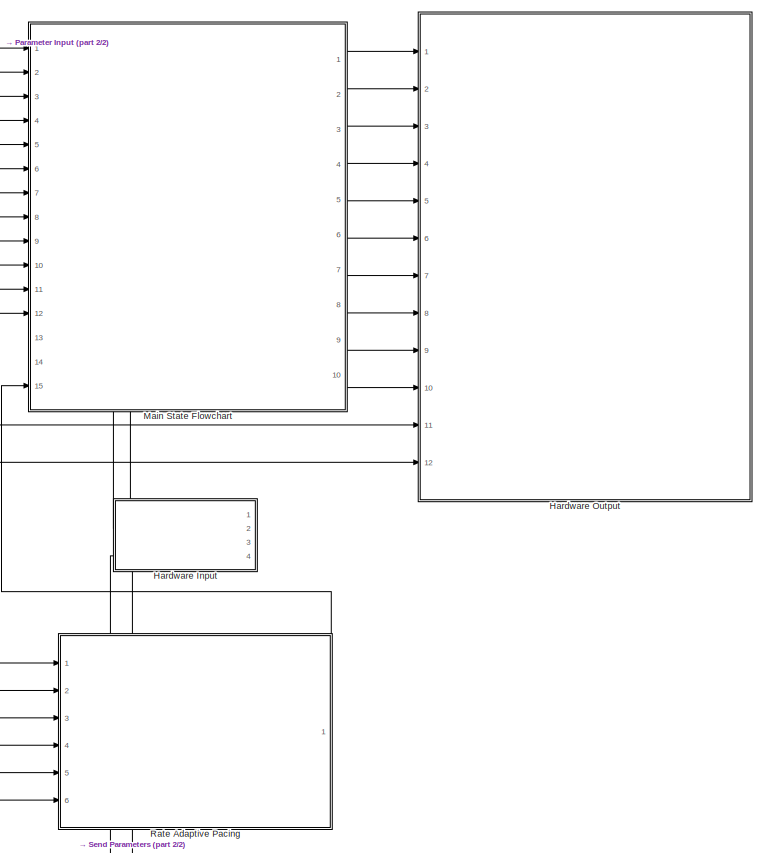
[diagram: root canvas - part 1/2, middle right region]
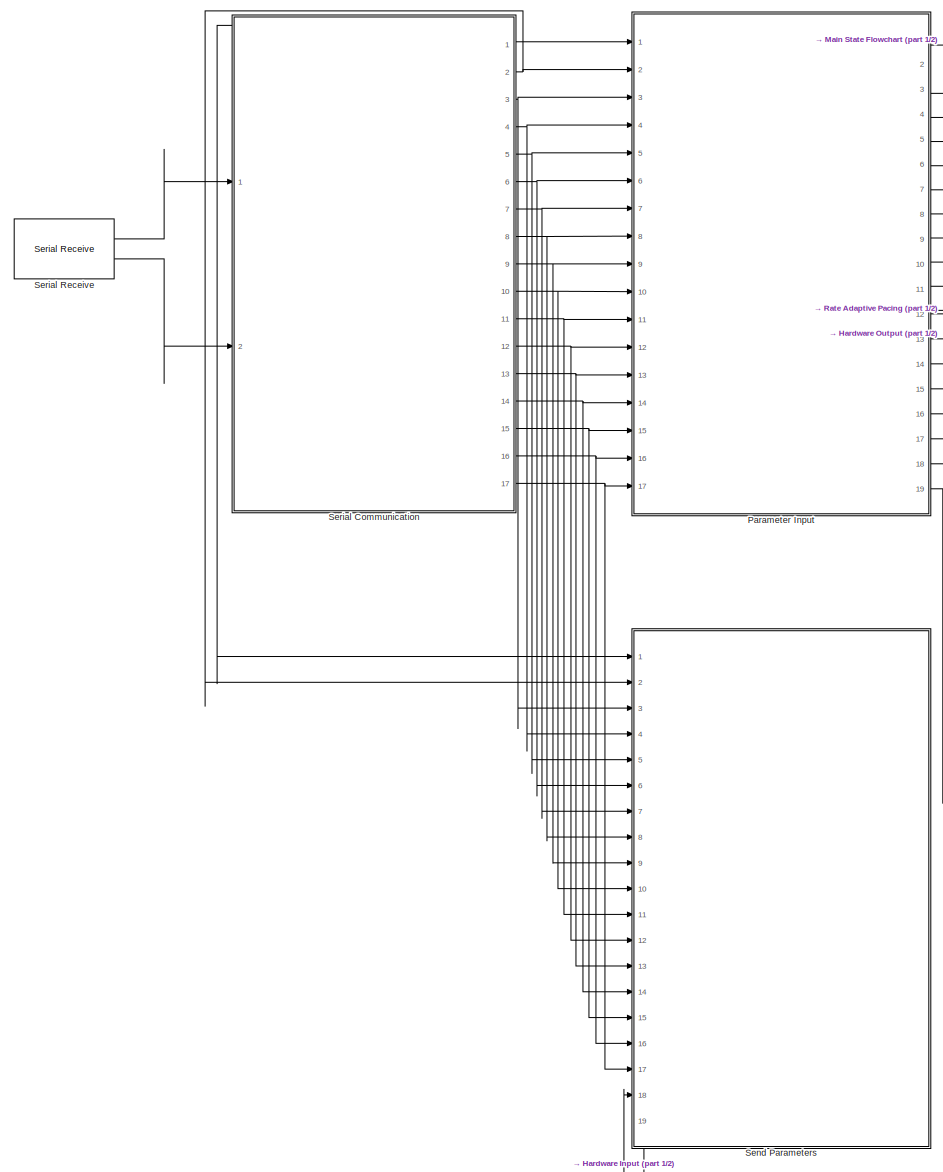
[diagram: root canvas - part 2/2, left side, full height]
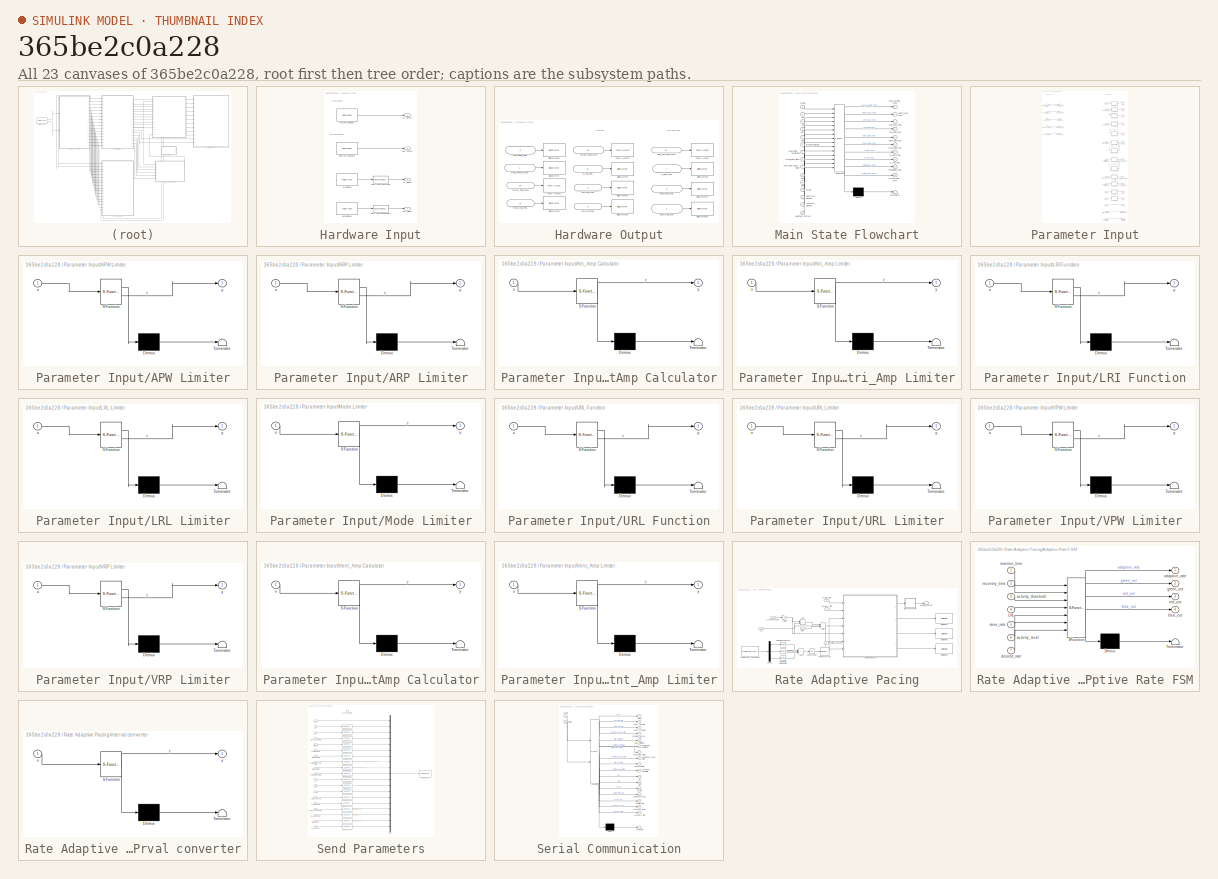
[diagram: thumbnail index - all 23 canvases of the model, root first then tree order]
MODEL slx_365be2c0a228
KIND model
CONFIG AbsTol = auto
CONFIG EnableMultiTasking = on
CONFIG FixedStep = 1e-3
CONFIG MaxStep = auto
CONFIG MinStep = auto
CONFIG RelTol = 1e-3
CONFIG SampleTimeConstraint = Unconstrained
CONFIG Solver = FixedStepAuto
CONFIG SolverName = FixedStepAuto
CONFIG StartTime = 0.0
CONFIG StopTime = 5
WORKSPACE source: mxarray member
WORKSPACE ATR_CMP_REF_PWM_PERCENTAGE = 50
WORKSPACE PACING_REF_PWM_DUTY_PERCENTAGE = 50
WORKSPACE VENT_CMP_REF_PWM_PERCENTAGE = 50
BLOCK [SubSystem] Hardware Input
  PortSchema = {"entries":[{"content":{"sides":[{"content":{"connectorIds":["Out1","Out2","Out3","Out4"]},"type":"ConnectorPlacement.EquallySpacedRectSide","uuid":"5cee9ea6-bf5d-4625-bfce-39977475e911"},{"content":{"connectorIds":[],"side":"RIGHT"},"type":"ConnectorPlacement.EquallySpacedRectSide","uuid":"d8f9e342-4161-4713-ba8e-977d0ac6df9e"},{"content":{"connectorIds":[],"side":"TOP"},"type":"ConnectorPlacemen...<+258ch>
  Ports = [0, 4]
  RequestExecContextInheritance = off
BLOCK [Reference] Hardware Input/ATR_CMP_DETECT  REF=frdmk64flib/Digital Read
  Ports = [0, 1]
  SourceBlock = frdmk64flib/Digital Read
  SourceProductBaseCode = EC_FRDM_K64F
  SourceType = freedomk64f.DigitalRead
BLOCK [Reference] Hardware Input/AtrSignalIn  REF=frdmk64flib/Analog Input
  Ports = [0, 1]
  SourceBlock = frdmk64flib/Analog Input
  SourceProductBaseCode = EC_FRDM_K64F
  SourceType = freedomk64f.AnalogInput
BLOCK [Outport] Hardware Input/Atr_Detect
BLOCK [Outport] Hardware Input/Atr_Signal
  OutDataTypeStr = single
  Port = 3
BLOCK [DataTypeConversion] Hardware Input/Data Type Conversion
  OutDataTypeStr = single
  RndMeth = Floor
  SaturateOnIntegerOverflow = off
BLOCK [DataTypeConversion] Hardware Input/Data Type Conversion1
  OutDataTypeStr = single
  RndMeth = Floor
  SaturateOnIntegerOverflow = off
BLOCK [Reference] Hardware Input/VENT_CMP_DETECT  REF=frdmk64flib/Digital Read
  Ports = [0, 1]
  SourceBlock = frdmk64flib/Digital Read
  SourceProductBaseCode = EC_FRDM_K64F
  SourceType = freedomk64f.DigitalRead
BLOCK [Reference] Hardware Input/VentSignalIn  REF=frdmk64flib/Analog Input
  Ports = [0, 1]
  SourceBlock = frdmk64flib/Analog Input
  SourceProductBaseCode = EC_FRDM_K64F
  SourceType = freedomk64f.AnalogInput
BLOCK [Outport] Hardware Input/Vent_Detect
  Port = 2
BLOCK [Outport] Hardware Input/Vent_Signal
  OutDataTypeStr = single
  Port = 4
BLOCK [SubSystem] Hardware Output
  Ports = [12]
  RequestExecContextInheritance = off
BLOCK [Inport] Hardware Output/ATR_CMP_REF_PWM
  IconDisplay = Port number and signal name
  Port = 12
BLOCK [Inport] Hardware Output/ATR_GND_CTRL
  IconDisplay = Port number and signal name
  Port = 4
BLOCK [Inport] Hardware Output/ATR_PACE_CTRL
  IconDisplay = Port number and signal name
  Port = 3
BLOCK [Reference] Hardware Output/Digital Write  REF=frdmk64flib/Digital Write
  Ports = [1]
  SourceBlock = frdmk64flib/Digital Write
  SourceProductBaseCode = EC_FRDM_K64F
  SourceType = freedomk64f.DigitalWrite
BLOCK [Reference] Hardware Output/Digital Write1  REF=frdmk64flib/Digital Write
  Ports = [1]
  SourceBlock = frdmk64flib/Digital Write
  SourceProductBaseCode = EC_FRDM_K64F
  SourceType = freedomk64f.DigitalWrite
BLOCK [Reference] Hardware Output/Digital Write2  REF=frdmk64flib/Digital Write
  Ports = [1]
  SourceBlock = frdmk64flib/Digital Write
  SourceProductBaseCode = EC_FRDM_K64F
  SourceType = freedomk64f.DigitalWrite
BLOCK [Reference] Hardware Output/Digital Write3  REF=frdmk64flib/Digital Write
  Ports = [1]
  SourceBlock = frdmk64flib/Digital Write
  SourceProductBaseCode = EC_FRDM_K64F
  SourceType = freedomk64f.DigitalWrite
BLOCK [Reference] Hardware Output/Digital Write4  REF=frdmk64flib/Digital Write
  Ports = [1]
  SourceBlock = frdmk64flib/Digital Write
  SourceProductBaseCode = EC_FRDM_K64F
  SourceType = freedomk64f.DigitalWrite
BLOCK [Reference] Hardware Output/Digital Write5  REF=frdmk64flib/Digital Write
  Ports = [1]
  SourceBlock = frdmk64flib/Digital Write
  SourceProductBaseCode = EC_FRDM_K64F
  SourceType = freedomk64f.DigitalWrite
BLOCK [Reference] Hardware Output/Digital Write6  REF=frdmk64flib/Digital Write
  Ports = [1]
  SourceBlock = frdmk64flib/Digital Write
  SourceProductBaseCode = EC_FRDM_K64F
  SourceType = freedomk64f.DigitalWrite
BLOCK [Reference] Hardware Output/Digital Write7  REF=frdmk64flib/Digital Write
  Ports = [1]
  SourceBlock = frdmk64flib/Digital Write
  SourceProductBaseCode = EC_FRDM_K64F
  SourceType = freedomk64f.DigitalWrite
BLOCK [Reference] Hardware Output/Digital Write8  REF=frdmk64flib/Digital Write
  Ports = [1]
  SourceBlock = frdmk64flib/Digital Write
  SourceProductBaseCode = EC_FRDM_K64F
  SourceType = freedomk64f.DigitalWrite
BLOCK [Inport] Hardware Output/FRONTEND_CTRL
  IconDisplay = Port number and signal name
  Port = 9
BLOCK [Inport] Hardware Output/PACE_CHARGE_CTRL
  IconDisplay = Port number and signal name
BLOCK [Inport] Hardware Output/PACE_GND_CTRL
  IconDisplay = Port number and signal name
  Port = 6
BLOCK [Inport] Hardware Output/PACING_REF_PWM
  IconDisplay = Port number and signal name
  Port = 10
BLOCK [Reference] Hardware Output/PWM Output  REF=frdmk64flib/PWM Output
  Ports = [1]
  SourceBlock = frdmk64flib/PWM Output
  SourceProductBaseCode = EC_FRDM_K64F
  SourceType = freedomk64f.PWMOutput
BLOCK [Reference] Hardware Output/PWM Output1  REF=frdmk64flib/PWM Output
  Ports = [1]
  SourceBlock = frdmk64flib/PWM Output
  SourceProductBaseCode = EC_FRDM_K64F
  SourceType = freedomk64f.PWMOutput
BLOCK [Reference] Hardware Output/PWM Output2  REF=frdmk64flib/PWM Output
  Ports = [1]
  SourceBlock = frdmk64flib/PWM Output
  SourceProductBaseCode = EC_FRDM_K64F
  SourceType = freedomk64f.PWMOutput
BLOCK [Inport] Hardware Output/VENT_CMP_REF_PWM
  IconDisplay = Port number and signal name
  Port = 11
BLOCK [Inport] Hardware Output/VENT_GND_CTRL
  IconDisplay = Port number and signal name
  Port = 5
BLOCK [Inport] Hardware Output/VENT_PACE_CTRL
  IconDisplay = Port number and signal name
  Port = 2
BLOCK [Inport] Hardware Output/Z_ATR_CTRL
  IconDisplay = Port number and signal name
  Port = 8
BLOCK [Inport] Hardware Output/Z_VENT_CTRL
  IconDisplay = Port number and signal name
  Port = 7
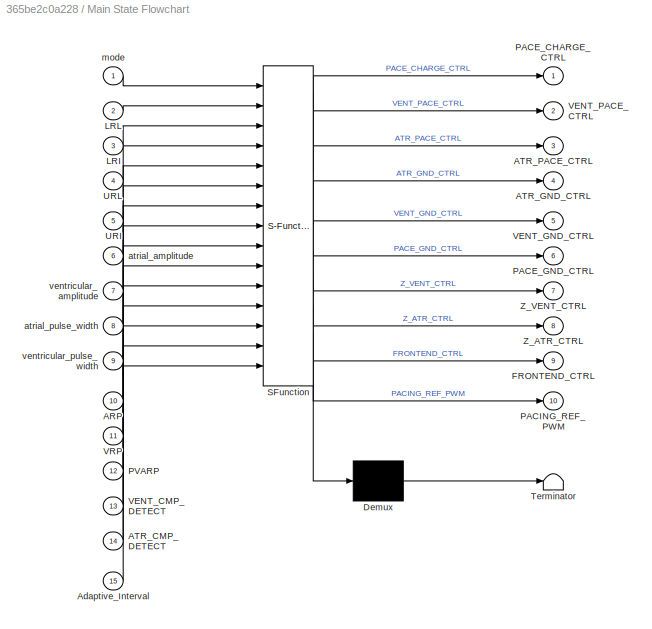
BLOCK [SubSystem] Main State Flowchart
  ErrorFcn = Stateflow.Translate.translate
  PermitHierarchicalResolution = ExplicitOnly
  PortSchema = {"entries":[{"content":{"sides":[{"content":{"connectorIds":["In1","In3","In4","In5","In6","In7","In8","In9","In10","In11","In12","In2","In13","In14","In15"]},"type":"ConnectorPlacement.EquallySpacedRectSide","uuid":"dd10fdf1-6157-45dd-a563-5abbe55aaf98"},{"content":{"connectorIds":["Out1","Out2","Out3","Out4","Out5","Out6","Out7","Out8","Out9","Out10"],"side":"RIGHT"},"type":"ConnectorPlacement.E...<+396ch>
  Ports = [15, 10]
  RequestExecContextInheritance = off
  SFBlockType = Chart
  TreatAsAtomicUnit = on
BLOCK [Demux] Main State Flowchart/ Demux 
  Outputs = 1
  Ports = [1, 1]
BLOCK [S-Function] Main State Flowchart/ SFunction 
  EnableBusSupport = on
  FunctionName = sf_sfun
  PortCounts = [15 11]
  Ports = [15, 11]
  SFcnIsStateOwnerBlock = off
  SFunctionDeploymentMode = off
  Tag = Stateflow S-Function 3
BLOCK [Terminator] Main State Flowchart/ Terminator 
BLOCK [Inport] Main State Flowchart/ARP
  Port = 10
BLOCK [Inport] Main State Flowchart/ATR_CMP_DETECT
  Port = 14
BLOCK [Outport] Main State Flowchart/ATR_GND_CTRL
  Port = 4
BLOCK [Outport] Main State Flowchart/ATR_PACE_CTRL
  Port = 3
BLOCK [Inport] Main State Flowchart/Adaptive_Interval
  Port = 15
BLOCK [Outport] Main State Flowchart/FRONTEND_CTRL
  Port = 9
BLOCK [Inport] Main State Flowchart/LRI
  Port = 3
BLOCK [Inport] Main State Flowchart/LRL
  Port = 2
BLOCK [Outport] Main State Flowchart/PACE_CHARGE_CTRL
BLOCK [Outport] Main State Flowchart/PACE_GND_CTRL
  Port = 6
BLOCK [Outport] Main State Flowchart/PACING_REF_PWM
  Port = 10
BLOCK [Inport] Main State Flowchart/PVARP
  Port = 12
BLOCK [Inport] Main State Flowchart/URI
  Port = 5
BLOCK [Inport] Main State Flowchart/URL
  Port = 4
BLOCK [Inport] Main State Flowchart/VENT_CMP_DETECT
  Port = 13
BLOCK [Outport] Main State Flowchart/VENT_GND_CTRL
  Port = 5
BLOCK [Outport] Main State Flowchart/VENT_PACE_CTRL
  Port = 2
BLOCK [Inport] Main State Flowchart/VRP
  Port = 11
BLOCK [Outport] Main State Flowchart/Z_ATR_CTRL
  Port = 8
BLOCK [Outport] Main State Flowchart/Z_VENT_CTRL
  Port = 7
BLOCK [Inport] Main State Flowchart/atrial_amplitude
  Port = 6
BLOCK [Inport] Main State Flowchart/atrial_pulse_width
  Port = 8
BLOCK [Inport] Main State Flowchart/mode
BLOCK [Inport] Main State Flowchart/ventricular_amplitude
  Port = 7
BLOCK [Inport] Main State Flowchart/ventricular_pulse_width
  Port = 9
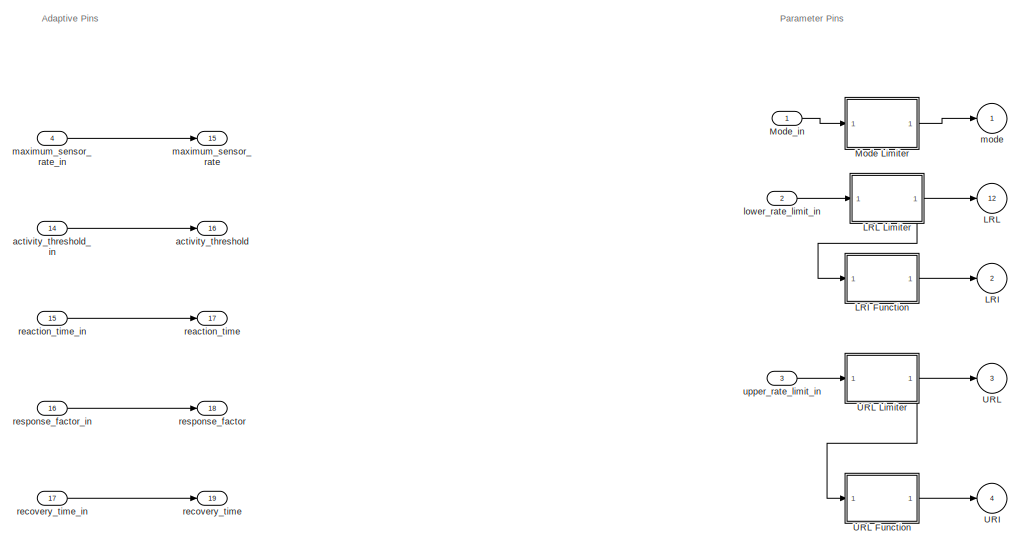
[diagram: Parameter Input - part 1/2, full width, top band]
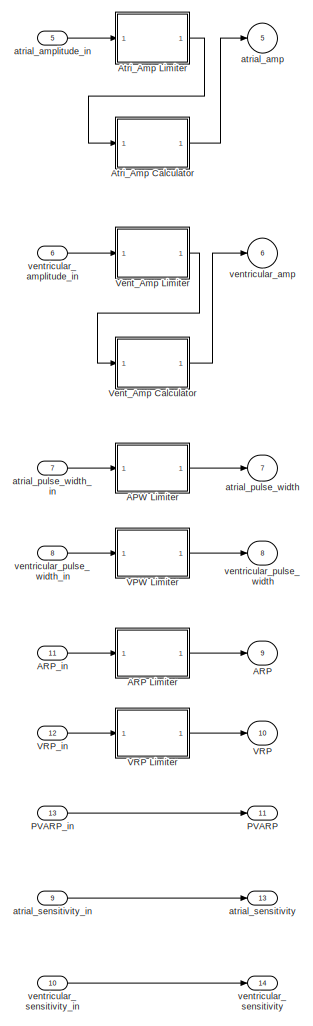
[diagram: Parameter Input - part 2/2, bottom right region]
BLOCK [SubSystem] Parameter Input
  Ports = [17, 19]
  RequestExecContextInheritance = off
BLOCK [SubSystem] Parameter Input/APW Limiter
  ErrorFcn = Stateflow.Translate.translate
  PermitHierarchicalResolution = ExplicitOnly
  Ports = [1, 1]
  RequestExecContextInheritance = off
  SFBlockType = MATLAB Function
  TreatAsAtomicUnit = on
BLOCK [Demux] Parameter Input/APW Limiter/ Demux 
  Outputs = 1
  Ports = [1, 1]
BLOCK [S-Function] Parameter Input/APW Limiter/ SFunction 
  EnableBusSupport = on
  FunctionName = sf_sfun
  PortCounts = [1 2]
  Ports = [1, 2]
  SFcnIsStateOwnerBlock = off
  SFunctionDeploymentMode = off
  Tag = Stateflow S-Function 1
BLOCK [Terminator] Parameter Input/APW Limiter/ Terminator 
BLOCK [Inport] Parameter Input/APW Limiter/u
BLOCK [Outport] Parameter Input/APW Limiter/y
BLOCK [Outport] Parameter Input/ARP
  OutDataTypeStr = single
  Port = 9
BLOCK [SubSystem] Parameter Input/ARP Limiter
  ErrorFcn = Stateflow.Translate.translate
  PermitHierarchicalResolution = ExplicitOnly
  Ports = [1, 1]
  RequestExecContextInheritance = off
  SFBlockType = MATLAB Function
  TreatAsAtomicUnit = on
BLOCK [Demux] Parameter Input/ARP Limiter/ Demux 
  Outputs = 1
  Ports = [1, 1]
BLOCK [S-Function] Parameter Input/ARP Limiter/ SFunction 
  EnableBusSupport = on
  FunctionName = sf_sfun
  PortCounts = [1 2]
  Ports = [1, 2]
  SFcnIsStateOwnerBlock = off
  SFunctionDeploymentMode = off
  Tag = Stateflow S-Function 7
BLOCK [Terminator] Parameter Input/ARP Limiter/ Terminator 
BLOCK [Inport] Parameter Input/ARP Limiter/u
BLOCK [Outport] Parameter Input/ARP Limiter/y
BLOCK [Inport] Parameter Input/ARP_in
  OutDataTypeStr = single
  Port = 11
  Unit = ms
BLOCK [SubSystem] Parameter Input/Atri_Amp Calculator
  ErrorFcn = Stateflow.Translate.translate
  PermitHierarchicalResolution = ExplicitOnly
  Ports = [1, 1]
  RequestExecContextInheritance = off
  SFBlockType = MATLAB Function
  TreatAsAtomicUnit = on
BLOCK [Demux] Parameter Input/Atri_Amp Calculator/ Demux 
  Outputs = 1
  Ports = [1, 1]
BLOCK [S-Function] Parameter Input/Atri_Amp Calculator/ SFunction 
  EnableBusSupport = on
  FunctionName = sf_sfun
  PortCounts = [1 2]
  Ports = [1, 2]
  SFcnIsStateOwnerBlock = off
  SFunctionDeploymentMode = off
  Tag = Stateflow S-Function 15
BLOCK [Terminator] Parameter Input/Atri_Amp Calculator/ Terminator 
BLOCK [Inport] Parameter Input/Atri_Amp Calculator/u
BLOCK [Outport] Parameter Input/Atri_Amp Calculator/y
BLOCK [SubSystem] Parameter Input/Atri_Amp Limiter
  ErrorFcn = Stateflow.Translate.translate
  PermitHierarchicalResolution = ExplicitOnly
  Ports = [1, 1]
  RequestExecContextInheritance = off
  SFBlockType = MATLAB Function
  TreatAsAtomicUnit = on
BLOCK [Demux] Parameter Input/Atri_Amp Limiter/ Demux 
  Outputs = 1
  Ports = [1, 1]
BLOCK [S-Function] Parameter Input/Atri_Amp Limiter/ SFunction 
  EnableBusSupport = on
  FunctionName = sf_sfun
  PortCounts = [1 2]
  Ports = [1, 2]
  SFcnIsStateOwnerBlock = off
  SFunctionDeploymentMode = off
  Tag = Stateflow S-Function 5
BLOCK [Terminator] Parameter Input/Atri_Amp Limiter/ Terminator 
BLOCK [Inport] Parameter Input/Atri_Amp Limiter/u
BLOCK [Outport] Parameter Input/Atri_Amp Limiter/y
BLOCK [Outport] Parameter Input/LRI
  OutDataTypeStr = single
  Port = 2
BLOCK [SubSystem] Parameter Input/LRI Function
  ErrorFcn = Stateflow.Translate.translate
  PermitHierarchicalResolution = ExplicitOnly
  Ports = [1, 1]
  RequestExecContextInheritance = off
  SFBlockType = MATLAB Function
  TreatAsAtomicUnit = on
BLOCK [Demux] Parameter Input/LRI Function/ Demux 
  Outputs = 1
  Ports = [1, 1]
BLOCK [S-Function] Parameter Input/LRI Function/ SFunction 
  EnableBusSupport = on
  FunctionName = sf_sfun
  PortCounts = [1 2]
  Ports = [1, 2]
  SFcnIsStateOwnerBlock = off
  SFunctionDeploymentMode = off
  Tag = Stateflow S-Function 10
BLOCK [Terminator] Parameter Input/LRI Function/ Terminator 
BLOCK [Inport] Parameter Input/LRI Function/u
BLOCK [Outport] Parameter Input/LRI Function/y
BLOCK [Outport] Parameter Input/LRL
  OutDataTypeStr = single
  Port = 12
BLOCK [SubSystem] Parameter Input/LRL Limiter
  ErrorFcn = Stateflow.Translate.translate
  PermitHierarchicalResolution = ExplicitOnly
  Ports = [1, 1]
  RequestExecContextInheritance = off
  SFBlockType = MATLAB Function
  TreatAsAtomicUnit = on
BLOCK [Demux] Parameter Input/LRL Limiter/ Demux 
  Outputs = 1
  Ports = [1, 1]
BLOCK [S-Function] Parameter Input/LRL Limiter/ SFunction 
  EnableBusSupport = on
  FunctionName = sf_sfun
  PortCounts = [1 2]
  Ports = [1, 2]
  SFcnIsStateOwnerBlock = off
  SFunctionDeploymentMode = off
  Tag = Stateflow S-Function 6
BLOCK [Terminator] Parameter Input/LRL Limiter/ Terminator 
BLOCK [Inport] Parameter Input/LRL Limiter/u
BLOCK [Outport] Parameter Input/LRL Limiter/y
BLOCK [SubSystem] Parameter Input/Mode Limiter
  ErrorFcn = Stateflow.Translate.translate
  PermitHierarchicalResolution = ExplicitOnly
  Ports = [1, 1]
  RequestExecContextInheritance = off
  SFBlockType = MATLAB Function
  TreatAsAtomicUnit = on
BLOCK [Demux] Parameter Input/Mode Limiter/ Demux 
  Outputs = 1
  Ports = [1, 1]
BLOCK [S-Function] Parameter Input/Mode Limiter/ SFunction 
  EnableBusSupport = on
  FunctionName = sf_sfun
  PortCounts = [1 2]
  Ports = [1, 2]
  SFcnIsStateOwnerBlock = off
  SFunctionDeploymentMode = off
  Tag = Stateflow S-Function 2
BLOCK [Terminator] Parameter Input/Mode Limiter/ Terminator 
BLOCK [Inport] Parameter Input/Mode Limiter/u
BLOCK [Outport] Parameter Input/Mode Limiter/y
BLOCK [Inport] Parameter Input/Mode_in
  OutDataTypeStr = uint8
BLOCK [Outport] Parameter Input/PVARP
  OutDataTypeStr = uint16
  Port = 11
BLOCK [Inport] Parameter Input/PVARP_in
  OutDataTypeStr = uint16
  Port = 13
  Unit = ms
BLOCK [Outport] Parameter Input/URI
  OutDataTypeStr = single
  Port = 4
BLOCK [Outport] Parameter Input/URL
  OutDataTypeStr = single
  Port = 3
BLOCK [SubSystem] Parameter Input/URL Function
  ErrorFcn = Stateflow.Translate.translate
  PermitHierarchicalResolution = ExplicitOnly
  Ports = [1, 1]
  RequestExecContextInheritance = off
  SFBlockType = MATLAB Function
  TreatAsAtomicUnit = on
BLOCK [Demux] Parameter Input/URL Function/ Demux 
  Outputs = 1
  Ports = [1, 1]
BLOCK [S-Function] Parameter Input/URL Function/ SFunction 
  EnableBusSupport = on
  FunctionName = sf_sfun
  PortCounts = [1 2]
  Ports = [1, 2]
  SFcnIsStateOwnerBlock = off
  SFunctionDeploymentMode = off
  Tag = Stateflow S-Function 11
BLOCK [Terminator] Parameter Input/URL Function/ Terminator 
BLOCK [Inport] Parameter Input/URL Function/u
BLOCK [Outport] Parameter Input/URL Function/y
BLOCK [SubSystem] Parameter Input/URL Limiter
  ErrorFcn = Stateflow.Translate.translate
  PermitHierarchicalResolution = ExplicitOnly
  Ports = [1, 1]
  RequestExecContextInheritance = off
  SFBlockType = MATLAB Function
  TreatAsAtomicUnit = on
BLOCK [Demux] Parameter Input/URL Limiter/ Demux 
  Outputs = 1
  Ports = [1, 1]
BLOCK [S-Function] Parameter Input/URL Limiter/ SFunction 
  EnableBusSupport = on
  FunctionName = sf_sfun
  PortCounts = [1 2]
  Ports = [1, 2]
  SFcnIsStateOwnerBlock = off
  SFunctionDeploymentMode = off
  Tag = Stateflow S-Function 9
BLOCK [Terminator] Parameter Input/URL Limiter/ Terminator 
BLOCK [Inport] Parameter Input/URL Limiter/u
BLOCK [Outport] Parameter Input/URL Limiter/y
BLOCK [SubSystem] Parameter Input/VPW Limiter
  ErrorFcn = Stateflow.Translate.translate
  PermitHierarchicalResolution = ExplicitOnly
  Ports = [1, 1]
  RequestExecContextInheritance = off
  SFBlockType = MATLAB Function
  TreatAsAtomicUnit = on
BLOCK [Demux] Parameter Input/VPW Limiter/ Demux 
  Outputs = 1
  Ports = [1, 1]
BLOCK [S-Function] Parameter Input/VPW Limiter/ SFunction 
  EnableBusSupport = on
  FunctionName = sf_sfun
  PortCounts = [1 2]
  Ports = [1, 2]
  SFcnIsStateOwnerBlock = off
  SFunctionDeploymentMode = off
  Tag = Stateflow S-Function 4
BLOCK [Terminator] Parameter Input/VPW Limiter/ Terminator 
BLOCK [Inport] Parameter Input/VPW Limiter/u
BLOCK [Outport] Parameter Input/VPW Limiter/y
BLOCK [Outport] Parameter Input/VRP
  OutDataTypeStr = single
  Port = 10
BLOCK [SubSystem] Parameter Input/VRP Limiter
  ErrorFcn = Stateflow.Translate.translate
  PermitHierarchicalResolution = ExplicitOnly
  Ports = [1, 1]
  RequestExecContextInheritance = off
  SFBlockType = MATLAB Function
  TreatAsAtomicUnit = on
BLOCK [Demux] Parameter Input/VRP Limiter/ Demux 
  Outputs = 1
  Ports = [1, 1]
BLOCK [S-Function] Parameter Input/VRP Limiter/ SFunction 
  EnableBusSupport = on
  FunctionName = sf_sfun
  PortCounts = [1 2]
  Ports = [1, 2]
  SFcnIsStateOwnerBlock = off
  SFunctionDeploymentMode = off
  Tag = Stateflow S-Function 8
BLOCK [Terminator] Parameter Input/VRP Limiter/ Terminator 
BLOCK [Inport] Parameter Input/VRP Limiter/u
BLOCK [Outport] Parameter Input/VRP Limiter/y
BLOCK [Inport] Parameter Input/VRP_in
  OutDataTypeStr = single
  Port = 12
  Unit = ms
BLOCK [SubSystem] Parameter Input/Vent_Amp Calculator
  ErrorFcn = Stateflow.Translate.translate
  PermitHierarchicalResolution = ExplicitOnly
  Ports = [1, 1]
  RequestExecContextInheritance = off
  SFBlockType = MATLAB Function
  TreatAsAtomicUnit = on
BLOCK [Demux] Parameter Input/Vent_Amp Calculator/ Demux 
  Outputs = 1
  Ports = [1, 1]
BLOCK [S-Function] Parameter Input/Vent_Amp Calculator/ SFunction 
  EnableBusSupport = on
  FunctionName = sf_sfun
  PortCounts = [1 2]
  Ports = [1, 2]
  SFcnIsStateOwnerBlock = off
  SFunctionDeploymentMode = off
  Tag = Stateflow S-Function 16
BLOCK [Terminator] Parameter Input/Vent_Amp Calculator/ Terminator 
BLOCK [Inport] Parameter Input/Vent_Amp Calculator/u
BLOCK [Outport] Parameter Input/Vent_Amp Calculator/y
BLOCK [SubSystem] Parameter Input/Vent_Amp Limiter
  ErrorFcn = Stateflow.Translate.translate
  PermitHierarchicalResolution = ExplicitOnly
  Ports = [1, 1]
  RequestExecContextInheritance = off
  SFBlockType = MATLAB Function
  TreatAsAtomicUnit = on
BLOCK [Demux] Parameter Input/Vent_Amp Limiter/ Demux 
  Outputs = 1
  Ports = [1, 1]
BLOCK [S-Function] Parameter Input/Vent_Amp Limiter/ SFunction 
  EnableBusSupport = on
  FunctionName = sf_sfun
  PortCounts = [1 2]
  Ports = [1, 2]
  SFcnIsStateOwnerBlock = off
  SFunctionDeploymentMode = off
  Tag = Stateflow S-Function 14
BLOCK [Terminator] Parameter Input/Vent_Amp Limiter/ Terminator 
BLOCK [Inport] Parameter Input/Vent_Amp Limiter/u
BLOCK [Outport] Parameter Input/Vent_Amp Limiter/y
BLOCK [Outport] Parameter Input/activity_threshold
  OutDataTypeStr = single
  Port = 16
BLOCK [Inport] Parameter Input/activity_threshold_in
  OutDataTypeStr = single
  Port = 14
BLOCK [Outport] Parameter Input/atrial_amp
  OutDataTypeStr = single
  Port = 5
BLOCK [Inport] Parameter Input/atrial_amplitude_in
  OutDataTypeStr = single
  Port = 5
  Unit = V
BLOCK [Outport] Parameter Input/atrial_pulse_width
  OutDataTypeStr = single
  Port = 7
BLOCK [Inport] Parameter Input/atrial_pulse_width_in
  LockScale = on
  OutDataTypeStr = single
  Port = 7
  Unit = ms
BLOCK [Outport] Parameter Input/atrial_sensitivity
  OutDataTypeStr = single
  Port = 13
BLOCK [Inport] Parameter Input/atrial_sensitivity_in
  OutDataTypeStr = single
  Port = 9
  Unit = mV
BLOCK [Inport] Parameter Input/lower_rate_limit_in
  OutDataTypeStr = single
  Port = 2
BLOCK [Outport] Parameter Input/maximum_sensor_rate
  OutDataTypeStr = single
  Port = 15
BLOCK [Inport] Parameter Input/maximum_sensor_rate_in
  OutDataTypeStr = single
  Port = 4
BLOCK [Outport] Parameter Input/mode
  OutDataTypeStr = uint8
BLOCK [Outport] Parameter Input/reaction_time
  OutDataTypeStr = single
  Port = 17
BLOCK [Inport] Parameter Input/reaction_time_in
  OutDataTypeStr = single
  Port = 15
  Unit = s
BLOCK [Outport] Parameter Input/recovery_time
  OutDataTypeStr = single
  Port = 19
BLOCK [Inport] Parameter Input/recovery_time_in
  OutDataTypeStr = single
  Port = 17
  Unit = s
BLOCK [Outport] Parameter Input/response_factor
  OutDataTypeStr = single
  Port = 18
BLOCK [Inport] Parameter Input/response_factor_in
  OutDataTypeStr = single
  Port = 16
BLOCK [Inport] Parameter Input/upper_rate_limit_in
  OutDataTypeStr = single
  Port = 3
BLOCK [Outport] Parameter Input/ventricular_amp
  OutDataTypeStr = single
  Port = 6
BLOCK [Inport] Parameter Input/ventricular_amplitude_in
  OutDataTypeStr = single
  Port = 6
  Unit = V
BLOCK [Outport] Parameter Input/ventricular_pulse_width
  OutDataTypeStr = single
  Port = 8
BLOCK [Inport] Parameter Input/ventricular_pulse_width_in
  OutDataTypeStr = single
  Port = 8
  Unit = ms
BLOCK [Outport] Parameter Input/ventricular_sensitivity
  OutDataTypeStr = single
  Port = 14
BLOCK [Inport] Parameter Input/ventricular_sensitivity_in
  OutDataTypeStr = single
  Port = 10
  Unit = mV
BLOCK [SubSystem] Rate Adaptive Pacing
  Ports = [6, 1]
  RequestExecContextInheritance = off
BLOCK [SubSystem] Rate Adaptive Pacing/Adaptive Rate FSM
  ErrorFcn = Stateflow.Translate.translate
  PermitHierarchicalResolution = ExplicitOnly
  PortSchema = {"entries":[{"content":{"sides":[{"content":{"connectorIds":["In1","In2","In5","In7","In4","In3","In6"]},"type":"ConnectorPlacement.EquallySpacedRectSide","uuid":"ac5b5a9a-baa0-451d-a6e3-39214b5ee711"},{"content":{"connectorIds":["Out1","Out2","Out3","Out4"],"side":"RIGHT"},"type":"ConnectorPlacement.EquallySpacedRectSide","uuid":"f0426f16-b598-4be9-afee-34b2a98f2478"},{"content":{"connectorIds":[...<+299ch>
  Ports = [7, 4]
  RequestExecContextInheritance = off
  SFBlockType = Chart
  TreatAsAtomicUnit = on
BLOCK [Demux] Rate Adaptive Pacing/Adaptive Rate FSM/ Demux 
  Outputs = 1
  Ports = [1, 1]
BLOCK [S-Function] Rate Adaptive Pacing/Adaptive Rate FSM/ SFunction 
  EnableBusSupport = on
  FunctionName = sf_sfun
  PortCounts = [7 5]
  Ports = [7, 5]
  SFcnIsStateOwnerBlock = off
  SFunctionDeploymentMode = off
  Tag = Stateflow S-Function 13
BLOCK [Terminator] Rate Adaptive Pacing/Adaptive Rate FSM/ Terminator 
BLOCK [Inport] Rate Adaptive Pacing/Adaptive Rate FSM/LRL
  Port = 4
BLOCK [Inport] Rate Adaptive Pacing/Adaptive Rate FSM/activity_level
  Port = 6
BLOCK [Inport] Rate Adaptive Pacing/Adaptive Rate FSM/activity_threshold
  Port = 3
BLOCK [Outport] Rate Adaptive Pacing/Adaptive Rate FSM/adaptive_rate
BLOCK [Outport] Rate Adaptive Pacing/Adaptive Rate FSM/blue_out
  Port = 4
BLOCK [Inport] Rate Adaptive Pacing/Adaptive Rate FSM/desired_rate
  Port = 7
BLOCK [Outport] Rate Adaptive Pacing/Adaptive Rate FSM/green_out
  Port = 2
BLOCK [Inport] Rate Adaptive Pacing/Adaptive Rate FSM/raise_rate
  Port = 5
BLOCK [Inport] Rate Adaptive Pacing/Adaptive Rate FSM/reaction_time
BLOCK [Inport] Rate Adaptive Pacing/Adaptive Rate FSM/recovery_time
  Port = 2
BLOCK [Outport] Rate Adaptive Pacing/Adaptive Rate FSM/red_out
  Port = 3
BLOCK [Sum] Rate Adaptive Pacing/Add
  IconShape = rectangular
  Inputs = +++
  Ports = [3, 1]
BLOCK [Sum] Rate Adaptive Pacing/Add1
  IconShape = rectangular
  OutDataTypeStr = single
  Ports = [2, 1]
  RndMeth = Nearest
BLOCK [Demux] Rate Adaptive Pacing/Demux
  Outputs = 3
  Ports = [1, 3]
BLOCK [Reference] Rate Adaptive Pacing/Digital Write1  REF=frdmk64flib/Digital Write
  Ports = [1]
  SourceBlock = frdmk64flib/Digital Write
  SourceProductBaseCode = EC_FRDM_K64F
  SourceType = freedomk64f.DigitalWrite
BLOCK [Reference] Rate Adaptive Pacing/Digital Write2  REF=frdmk64flib/Digital Write
  Ports = [1]
  SourceBlock = frdmk64flib/Digital Write
  SourceProductBaseCode = EC_FRDM_K64F
  SourceType = freedomk64f.DigitalWrite
BLOCK [Reference] Rate Adaptive Pacing/Digital Write3  REF=frdmk64flib/Digital Write
  Ports = [1]
  SourceBlock = frdmk64flib/Digital Write
  SourceProductBaseCode = EC_FRDM_K64F
  SourceType = freedomk64f.DigitalWrite
BLOCK [Reference] Rate Adaptive Pacing/FXOS8700 6-Axes Sensor  REF=frdmk64flib/FXOS8700 6-Axes Sensor
  Ports = [0, 1]
  SourceBlock = frdmk64flib/FXOS8700 6-Axes Sensor
  SourceProductBaseCode = EC_FRDM_K64F
  SourceType = freedomk64f.fxos8700
BLOCK [Inport] Rate Adaptive Pacing/LRL
  NameLocation = top
  OutDataTypeStr = single
BLOCK [Inport] Rate Adaptive Pacing/MSR
  OutDataTypeStr = single
  Port = 2
BLOCK [Math] Rate Adaptive Pacing/Magnitude Squared
  Operator = magnitude^2
  Ports = [1, 1]
BLOCK [Math] Rate Adaptive Pacing/Magnitude Squared1
  Operator = magnitude^2
  Ports = [1, 1]
BLOCK [Math] Rate Adaptive Pacing/Magnitude Squared2
  Operator = magnitude^2
  Ports = [1, 1]
BLOCK [MinMax] Rate Adaptive Pacing/Min
  Inputs = 2
  OutDataTypeStr = single
  Ports = [2, 1]
BLOCK [Reference] Rate Adaptive Pacing/Moving Average  REF=dspstat3/Moving
Average
  Ports = [1, 1]
  SourceBlock = dspstat3/Moving\nAverage
  SourceProductBaseCode = DS
  SourceType = dsp.simulink.MovingAverage
BLOCK [Gain] Rate Adaptive Pacing/Multiply
  Gain = 4
  OutDataTypeStr = single
  ParamDataTypeStr = uint8
BLOCK [Sqrt] Rate Adaptive Pacing/Square Root
BLOCK [Inport] Rate Adaptive Pacing/activity_threshold
  OutDataTypeStr = single
  Port = 3
BLOCK [Outport] Rate Adaptive Pacing/adaptive_interval
  OutDataTypeStr = single
BLOCK [SubSystem] Rate Adaptive Pacing/interval converter
  ErrorFcn = Stateflow.Translate.translate
  PermitHierarchicalResolution = ExplicitOnly
  Ports = [1, 1]
  RequestExecContextInheritance = off
  SFBlockType = MATLAB Function
  TreatAsAtomicUnit = on
BLOCK [Demux] Rate Adaptive Pacing/interval converter/ Demux 
  Outputs = 1
  Ports = [1, 1]
BLOCK [S-Function] Rate Adaptive Pacing/interval converter/ SFunction 
  EnableBusSupport = on
  FunctionName = sf_sfun
  PortCounts = [1 2]
  Ports = [1, 2]
  SFcnIsStateOwnerBlock = off
  SFunctionDeploymentMode = off
  Tag = Stateflow S-Function 17
BLOCK [Terminator] Rate Adaptive Pacing/interval converter/ Terminator 
BLOCK [Inport] Rate Adaptive Pacing/interval converter/u
BLOCK [Outport] Rate Adaptive Pacing/interval converter/y
BLOCK [Inport] Rate Adaptive Pacing/reaction_time
  OutDataTypeStr = single
  Port = 4
BLOCK [Inport] Rate Adaptive Pacing/recovery_time
  OutDataTypeStr = single
  Port = 6
BLOCK [Inport] Rate Adaptive Pacing/response_factor
  OutDataTypeStr = single
  Port = 5
BLOCK [SubSystem] Send Parameters
  Ports = [19, 0, 0, 1]
  RequestExecContextInheritance = off
  TreatAsAtomicUnit = on
BLOCK [Inport] Send Parameters/ARP
  OutDataTypeStr = single
  Port = 11
BLOCK [Inport] Send Parameters/ActivityThreshold
  OutDataTypeStr = single
  Port = 14
BLOCK [Inport] Send Parameters/AtrialAmp
  OutDataTypeStr = single
  Port = 5
BLOCK [Inport] Send Parameters/AtrialPulseWidth
  OutDataTypeStr = single
  Port = 7
BLOCK [Inport] Send Parameters/AtrialSensitivity
  OutDataTypeStr = single
  Port = 9
BLOCK [Inport] Send Parameters/Atrial_Signal
  OutDataTypeStr = single
  Port = 18
BLOCK [Reference] Send Parameters/Byte Pack  REF=etargetslib/Byte Pack
  Ports = [1, 1]
  SourceBlock = etargetslib/Byte Pack
  SourceProductBaseCode = ME
  SourceType = Byte pack
BLOCK [Reference] Send Parameters/Byte Pack1  REF=etargetslib/Byte Pack
  Ports = [1, 1]
  SourceBlock = etargetslib/Byte Pack
  SourceProductBaseCode = ME
  SourceType = Byte pack
BLOCK [Reference] Send Parameters/Byte Pack10  REF=etargetslib/Byte Pack
  Ports = [1, 1]
  SourceBlock = etargetslib/Byte Pack
  SourceProductBaseCode = ME
  SourceType = Byte pack
BLOCK [Reference] Send Parameters/Byte Pack11  REF=etargetslib/Byte Pack
  Ports = [1, 1]
  SourceBlock = etargetslib/Byte Pack
  SourceProductBaseCode = ME
  SourceType = Byte pack
BLOCK [Reference] Send Parameters/Byte Pack12  REF=etargetslib/Byte Pack
  Ports = [1, 1]
  SourceBlock = etargetslib/Byte Pack
  SourceProductBaseCode = ME
  SourceType = Byte pack
BLOCK [Reference] Send Parameters/Byte Pack13  REF=etargetslib/Byte Pack
  Ports = [1, 1]
  SourceBlock = etargetslib/Byte Pack
  SourceProductBaseCode = ME
  SourceType = Byte pack
BLOCK [Reference] Send Parameters/Byte Pack14  REF=etargetslib/Byte Pack
  Ports = [1, 1]
  SourceBlock = etargetslib/Byte Pack
  SourceProductBaseCode = ME
  SourceType = Byte pack
BLOCK [Reference] Send Parameters/Byte Pack15  REF=etargetslib/Byte Pack
  Ports = [1, 1]
  SourceBlock = etargetslib/Byte Pack
  SourceProductBaseCode = ME
  SourceType = Byte pack
BLOCK [Reference] Send Parameters/Byte Pack16  REF=etargetslib/Byte Pack
  Ports = [1, 1]
  SourceBlock = etargetslib/Byte Pack
  SourceProductBaseCode = ME
  SourceType = Byte pack
BLOCK [Reference] Send Parameters/Byte Pack17  REF=etargetslib/Byte Pack
  Ports = [1, 1]
  SourceBlock = etargetslib/Byte Pack
  SourceProductBaseCode = ME
  SourceType = Byte pack
BLOCK [Reference] Send Parameters/Byte Pack2  REF=etargetslib/Byte Pack
  Ports = [1, 1]
  SourceBlock = etargetslib/Byte Pack
  SourceProductBaseCode = ME
  SourceType = Byte pack
BLOCK [Reference] Send Parameters/Byte Pack3  REF=etargetslib/Byte Pack
  Ports = [1, 1]
  SourceBlock = etargetslib/Byte Pack
  SourceProductBaseCode = ME
  SourceType = Byte pack
BLOCK [Reference] Send Parameters/Byte Pack4  REF=etargetslib/Byte Pack
  Ports = [1, 1]
  SourceBlock = etargetslib/Byte Pack
  SourceProductBaseCode = ME
  SourceType = Byte pack
BLOCK [Reference] Send Parameters/Byte Pack5  REF=etargetslib/Byte Pack
  Ports = [1, 1]
  SourceBlock = etargetslib/Byte Pack
  SourceProductBaseCode = ME
  SourceType = Byte pack
BLOCK [Reference] Send Parameters/Byte Pack6  REF=etargetslib/Byte Pack
  Ports = [1, 1]
  SourceBlock = etargetslib/Byte Pack
  SourceProductBaseCode = ME
  SourceType = Byte pack
BLOCK [Reference] Send Parameters/Byte Pack7  REF=etargetslib/Byte Pack
  Ports = [1, 1]
  SourceBlock = etargetslib/Byte Pack
  SourceProductBaseCode = ME
  SourceType = Byte pack
BLOCK [Reference] Send Parameters/Byte Pack8  REF=etargetslib/Byte Pack
  Ports = [1, 1]
  SourceBlock = etargetslib/Byte Pack
  SourceProductBaseCode = ME
  SourceType = Byte pack
BLOCK [Reference] Send Parameters/Byte Pack9  REF=etargetslib/Byte Pack
  Ports = [1, 1]
  SourceBlock = etargetslib/Byte Pack
  SourceProductBaseCode = ME
  SourceType = Byte pack
BLOCK [Inport] Send Parameters/LRL
  OutDataTypeStr = single
  Port = 2
BLOCK [Inport] Send Parameters/MaxSensorRate
  OutDataTypeStr = single
  Port = 4
BLOCK [Inport] Send Parameters/Mode
  OutDataTypeStr = uint8
BLOCK [Mux] Send Parameters/Mux
  DisplayOption = bar
  Inputs = 19
  Ports = [19, 1]
BLOCK [Inport] Send Parameters/PVARP
  OutDataTypeStr = uint16
  Port = 13
BLOCK [Inport] Send Parameters/ReactionTime
  OutDataTypeStr = single
  Port = 15
BLOCK [Inport] Send Parameters/RecoveryTime
  OutDataTypeStr = single
  Port = 17
BLOCK [Inport] Send Parameters/ResponseFactor
  OutDataTypeStr = single
  Port = 16
BLOCK [Reference] Send Parameters/Serial Transmit  REF=frdmk64flib/Serial Transmit
  Ports = [1]
  SourceBlock = frdmk64flib/Serial Transmit
  SourceProductBaseCode = EC_FRDM_K64F
  SourceType = freedomk64f.SCIWrite
BLOCK [Inport] Send Parameters/URL
  OutDataTypeStr = single
  Port = 3
BLOCK [Inport] Send Parameters/VRP
  OutDataTypeStr = single
  Port = 12
BLOCK [Inport] Send Parameters/Vent_Signal
  OutDataTypeStr = single
  Port = 19
BLOCK [Inport] Send Parameters/VentricularAmp
  OutDataTypeStr = single
  Port = 6
BLOCK [Inport] Send Parameters/VentricularPulseWidth
  OutDataTypeStr = single
  Port = 8
BLOCK [Inport] Send Parameters/VentricularSensitivity
  OutDataTypeStr = single
  Port = 10
BLOCK [TriggerPort] Send Parameters/send_params
  FunctionName = send_params
  IsSimulinkFunction = on
  Ports = []
  StatesWhenEnabling = held
  TriggerType = function-call
  VariantControl = Variant
BLOCK [SubSystem] Serial Communication
  ErrorFcn = Stateflow.Translate.translate
  PermitHierarchicalResolution = ExplicitOnly
  Ports = [2, 17]
  RequestExecContextInheritance = off
  SFBlockType = Chart
  TreatAsAtomicUnit = on
BLOCK [Demux] Serial Communication/ Demux 
  Outputs = 1
  Ports = [1, 1]
BLOCK [S-Function] Serial Communication/ SFunction 
  EnableBusSupport = on
  FunctionName = sf_sfun
  PortCounts = [2 18]
  Ports = [2, 18]
  SFcnIsStateOwnerBlock = off
  SFunctionDeploymentMode = off
  Tag = Stateflow S-Function 12
BLOCK [Terminator] Serial Communication/ Terminator 
BLOCK [Outport] Serial Communication/ARP
  Port = 11
BLOCK [Outport] Serial Communication/Mode
BLOCK [Outport] Serial Communication/PVARP
  Port = 13
BLOCK [Outport] Serial Communication/VRP
  Port = 12
BLOCK [Outport] Serial Communication/activity_threshold
  Port = 14
BLOCK [Outport] Serial Communication/atrial_amplitude
  Port = 5
BLOCK [Outport] Serial Communication/atrial_pulse_width
  Port = 7
BLOCK [Outport] Serial Communication/atrial_sensitivity
  Port = 9
BLOCK [Outport] Serial Communication/lower_rate_limit
  Port = 2
BLOCK [Outport] Serial Communication/maximum_sensor_rate
  Port = 4
BLOCK [Outport] Serial Communication/reaction_time
  Port = 15
BLOCK [Outport] Serial Communication/recovery_time
  Port = 17
BLOCK [Outport] Serial Communication/response_factor
  Port = 16
BLOCK [Inport] Serial Communication/rxdata
BLOCK [Inport] Serial Communication/status
  Port = 2
BLOCK [Outport] Serial Communication/upper_rate_limit
  Port = 3
BLOCK [Outport] Serial Communication/ventricular_amplitude
  Port = 6
BLOCK [Outport] Serial Communication/ventricular_pulse_width
  Port = 8
BLOCK [Outport] Serial Communication/ventricular_sensitivity
  Port = 10
BLOCK [Reference] Serial Receive  REF=frdmk64flib/Serial Receive
  Ports = [0, 2]
  SourceBlock = frdmk64flib/Serial Receive
  SourceProductBaseCode = EC_FRDM_K64F
  SourceType = freedomk64f.SCIRead
ANNOTATION Hardware Input: Atrial Sensing
ANNOTATION Hardware Input: Ventrical Sensing
ANNOTATION Hardware Output: Atrial Pins
ANNOTATION Hardware Output: Ventricular Pins
ANNOTATION Parameter Input: Adaptive Pins
ANNOTATION Parameter Input: Parameter Pins
LINE Hardware Input/ATR_CMP_DETECT:1 -> Hardware Input/Atr_Detect:1
LINE Hardware Input/AtrSignalIn:1 -> Hardware Input/Data Type Conversion:1
LINE Hardware Input/Data Type Conversion1:1 -> Hardware Input/Vent_Signal:1
LINE Hardware Input/Data Type Conversion:1 -> Hardware Input/Atr_Signal:1
LINE Hardware Input/VENT_CMP_DETECT:1 -> Hardware Input/Vent_Detect:1
LINE Hardware Input/VentSignalIn:1 -> Hardware Input/Data Type Conversion1:1
LINE Hardware Input:1 -> Main State Flowchart:14
LINE Hardware Input:2 -> Main State Flowchart:13
LINE Hardware Input:3 -> Send Parameters:18
LINE Hardware Input:4 -> Send Parameters:19
LINE Hardware Output/ATR_CMP_REF_PWM:1 -> Hardware Output/PWM Output2:1
LINE Hardware Output/ATR_GND_CTRL:1 -> Hardware Output/Digital Write6:1
LINE Hardware Output/ATR_PACE_CTRL:1 -> Hardware Output/Digital Write3:1
LINE Hardware Output/FRONTEND_CTRL:1 -> Hardware Output/Digital Write8:1
LINE Hardware Output/PACE_CHARGE_CTRL:1 -> Hardware Output/Digital Write:1
LINE Hardware Output/PACE_GND_CTRL:1 -> Hardware Output/Digital Write7:1
LINE Hardware Output/PACING_REF_PWM:1 -> Hardware Output/PWM Output1:1
LINE Hardware Output/VENT_CMP_REF_PWM:1 -> Hardware Output/PWM Output:1
LINE Hardware Output/VENT_GND_CTRL:1 -> Hardware Output/Digital Write5:1
LINE Hardware Output/VENT_PACE_CTRL:1 -> Hardware Output/Digital Write4:1
LINE Hardware Output/Z_ATR_CTRL:1 -> Hardware Output/Digital Write1:1
LINE Hardware Output/Z_VENT_CTRL:1 -> Hardware Output/Digital Write2:1
LINE Main State Flowchart:1 -> Hardware Output:1
LINE Main State Flowchart:10 -> Hardware Output:10
LINE Main State Flowchart:2 -> Hardware Output:2
LINE Main State Flowchart:3 -> Hardware Output:3
LINE Main State Flowchart:4 -> Hardware Output:4
LINE Main State Flowchart:5 -> Hardware Output:5
LINE Main State Flowchart:6 -> Hardware Output:6
LINE Main State Flowchart:7 -> Hardware Output:7
LINE Main State Flowchart:8 -> Hardware Output:8
LINE Main State Flowchart:9 -> Hardware Output:9
LINE Parameter Input/APW Limiter:1 -> Parameter Input/atrial_pulse_width:1
LINE Parameter Input/ARP Limiter:1 -> Parameter Input/ARP:1
LINE Parameter Input/ARP_in:1 -> Parameter Input/ARP Limiter:1
LINE Parameter Input/Atri_Amp Calculator:1 -> Parameter Input/atrial_amp:1
LINE Parameter Input/Atri_Amp Limiter:1 -> Parameter Input/Atri_Amp Calculator:1
LINE Parameter Input/LRI Function:1 -> Parameter Input/LRI:1
NET Parameter Input/LRL Limiter:1 -> Parameter Input/LRI Function:1, Parameter Input/LRL:1
LINE Parameter Input/Mode Limiter:1 -> Parameter Input/mode:1
LINE Parameter Input/Mode_in:1 -> Parameter Input/Mode Limiter:1
LINE Parameter Input/PVARP_in:1 -> Parameter Input/PVARP:1
LINE Parameter Input/URL Function:1 -> Parameter Input/URI:1
NET Parameter Input/URL Limiter:1 -> Parameter Input/URL Function:1, Parameter Input/URL:1
LINE Parameter Input/VPW Limiter:1 -> Parameter Input/ventricular_pulse_width:1
LINE Parameter Input/VRP Limiter:1 -> Parameter Input/VRP:1
LINE Parameter Input/VRP_in:1 -> Parameter Input/VRP Limiter:1
LINE Parameter Input/Vent_Amp Calculator:1 -> Parameter Input/ventricular_amp:1
LINE Parameter Input/Vent_Amp Limiter:1 -> Parameter Input/Vent_Amp Calculator:1
LINE Parameter Input/activity_threshold_in:1 -> Parameter Input/activity_threshold:1
LINE Parameter Input/atrial_amplitude_in:1 -> Parameter Input/Atri_Amp Limiter:1
LINE Parameter Input/atrial_pulse_width_in:1 -> Parameter Input/APW Limiter:1
LINE Parameter Input/atrial_sensitivity_in:1 -> Parameter Input/atrial_sensitivity:1
LINE Parameter Input/lower_rate_limit_in:1 -> Parameter Input/LRL Limiter:1
LINE Parameter Input/maximum_sensor_rate_in:1 -> Parameter Input/maximum_sensor_rate:1
LINE Parameter Input/reaction_time_in:1 -> Parameter Input/reaction_time:1
LINE Parameter Input/recovery_time_in:1 -> Parameter Input/recovery_time:1
LINE Parameter Input/response_factor_in:1 -> Parameter Input/response_factor:1
LINE Parameter Input/upper_rate_limit_in:1 -> Parameter Input/URL Limiter:1
LINE Parameter Input/ventricular_amplitude_in:1 -> Parameter Input/Vent_Amp Limiter:1
LINE Parameter Input/ventricular_pulse_width_in:1 -> Parameter Input/VPW Limiter:1
LINE Parameter Input/ventricular_sensitivity_in:1 -> Parameter Input/ventricular_sensitivity:1
LINE Parameter Input:1 -> Main State Flowchart:1
LINE Parameter Input:10 -> Main State Flowchart:11
LINE Parameter Input:11 -> Main State Flowchart:12
NET Parameter Input:12 -> Main State Flowchart:2, Rate Adaptive Pacing:1
LINE Parameter Input:13 -> Hardware Output:11
LINE Parameter Input:14 -> Hardware Output:12
LINE Parameter Input:15 -> Rate Adaptive Pacing:2
LINE Parameter Input:16 -> Rate Adaptive Pacing:3
LINE Parameter Input:17 -> Rate Adaptive Pacing:4
LINE Parameter Input:18 -> Rate Adaptive Pacing:5
LINE Parameter Input:19 -> Rate Adaptive Pacing:6
LINE Parameter Input:2 -> Main State Flowchart:3
LINE Parameter Input:3 -> Main State Flowchart:4
LINE Parameter Input:4 -> Main State Flowchart:5
LINE Parameter Input:5 -> Main State Flowchart:6
LINE Parameter Input:6 -> Main State Flowchart:7
LINE Parameter Input:7 -> Main State Flowchart:8
LINE Parameter Input:8 -> Main State Flowchart:9
LINE Parameter Input:9 -> Main State Flowchart:10
LINE Rate Adaptive Pacing/Adaptive Rate FSM:1 -> Rate Adaptive Pacing/interval converter:1
LINE Rate Adaptive Pacing/Adaptive Rate FSM:2 -> Rate Adaptive Pacing/Digital Write1:1
LINE Rate Adaptive Pacing/Adaptive Rate FSM:3 -> Rate Adaptive Pacing/Digital Write2:1
LINE Rate Adaptive Pacing/Adaptive Rate FSM:4 -> Rate Adaptive Pacing/Digital Write3:1
LINE Rate Adaptive Pacing/Add1:1 -> Rate Adaptive Pacing/Min:1
LINE Rate Adaptive Pacing/Add:1 -> Rate Adaptive Pacing/Square Root:1
LINE Rate Adaptive Pacing/Demux:1 -> Rate Adaptive Pacing/Magnitude Squared:1
LINE Rate Adaptive Pacing/Demux:2 -> Rate Adaptive Pacing/Magnitude Squared1:1
LINE Rate Adaptive Pacing/Demux:3 -> Rate Adaptive Pacing/Magnitude Squared2:1
LINE Rate Adaptive Pacing/FXOS8700 6-Axes Sensor:1 -> Rate Adaptive Pacing/Demux:1
NET Rate Adaptive Pacing/LRL:1 -> Rate Adaptive Pacing/Adaptive Rate FSM:4, Rate Adaptive Pacing/Add1:2
LINE Rate Adaptive Pacing/MSR:1 -> Rate Adaptive Pacing/Min:2
LINE Rate Adaptive Pacing/Magnitude Squared1:1 -> Rate Adaptive Pacing/Add:2
LINE Rate Adaptive Pacing/Magnitude Squared2:1 -> Rate Adaptive Pacing/Add:3
LINE Rate Adaptive Pacing/Magnitude Squared:1 -> Rate Adaptive Pacing/Add:1
LINE Rate Adaptive Pacing/Min:1 -> Rate Adaptive Pacing/Adaptive Rate FSM:7
LINE Rate Adaptive Pacing/Moving Average:1 -> Rate Adaptive Pacing/Adaptive Rate FSM:6
NET Rate Adaptive Pacing/Multiply:1 -> Rate Adaptive Pacing/Adaptive Rate FSM:5, Rate Adaptive Pacing/Add1:1
LINE Rate Adaptive Pacing/Square Root:1 -> Rate Adaptive Pacing/Moving Average:1
LINE Rate Adaptive Pacing/activity_threshold:1 -> Rate Adaptive Pacing/Adaptive Rate FSM:3
LINE Rate Adaptive Pacing/interval converter:1 -> Rate Adaptive Pacing/adaptive_interval:1
LINE Rate Adaptive Pacing/reaction_time:1 -> Rate Adaptive Pacing/Adaptive Rate FSM:1
LINE Rate Adaptive Pacing/recovery_time:1 -> Rate Adaptive Pacing/Adaptive Rate FSM:2
LINE Rate Adaptive Pacing/response_factor:1 -> Rate Adaptive Pacing/Multiply:1
LINE Rate Adaptive Pacing:1 -> Main State Flowchart:15
LINE Send Parameters/ARP:1 -> Send Parameters/Byte Pack5:1
LINE Send Parameters/ActivityThreshold:1 -> Send Parameters/Byte Pack2:1
LINE Send Parameters/AtrialAmp:1 -> Send Parameters/Byte Pack1:1
LINE Send Parameters/AtrialPulseWidth:1 -> Send Parameters/Byte Pack8:1
LINE Send Parameters/AtrialSensitivity:1 -> Send Parameters/Byte Pack3:1
LINE Send Parameters/Atrial_Signal:1 -> Send Parameters/Byte Pack13:1
LINE Send Parameters/Byte Pack10:1 -> Send Parameters/Mux:8
LINE Send Parameters/Byte Pack11:1 -> Send Parameters/Mux:15
LINE Send Parameters/Byte Pack12:1 -> Send Parameters/Mux:16
LINE Send Parameters/Byte Pack13:1 -> Send Parameters/Mux:18
LINE Send Parameters/Byte Pack14:1 -> Send Parameters/Mux:19
LINE Send Parameters/Byte Pack15:1 -> Send Parameters/Mux:2
LINE Send Parameters/Byte Pack16:1 -> Send Parameters/Mux:3
LINE Send Parameters/Byte Pack17:1 -> Send Parameters/Mux:4
LINE Send Parameters/Byte Pack1:1 -> Send Parameters/Mux:5
LINE Send Parameters/Byte Pack2:1 -> Send Parameters/Mux:14
LINE Send Parameters/Byte Pack3:1 -> Send Parameters/Mux:9
LINE Send Parameters/Byte Pack4:1 -> Send Parameters/Mux:6
LINE Send Parameters/Byte Pack5:1 -> Send Parameters/Mux:11
LINE Send Parameters/Byte Pack6:1 -> Send Parameters/Mux:13
LINE Send Parameters/Byte Pack7:1 -> Send Parameters/Mux:17
LINE Send Parameters/Byte Pack8:1 -> Send Parameters/Mux:7
LINE Send Parameters/Byte Pack9:1 -> Send Parameters/Mux:10
LINE Send Parameters/Byte Pack:1 -> Send Parameters/Mux:12
LINE Send Parameters/LRL:1 -> Send Parameters/Byte Pack15:1
LINE Send Parameters/MaxSensorRate:1 -> Send Parameters/Byte Pack17:1
LINE Send Parameters/Mode:1 -> Send Parameters/Mux:1
LINE Send Parameters/Mux:1 -> Send Parameters/Serial Transmit:1
LINE Send Parameters/PVARP:1 -> Send Parameters/Byte Pack6:1
LINE Send Parameters/ReactionTime:1 -> Send Parameters/Byte Pack11:1
LINE Send Parameters/RecoveryTime:1 -> Send Parameters/Byte Pack7:1
LINE Send Parameters/ResponseFactor:1 -> Send Parameters/Byte Pack12:1
LINE Send Parameters/URL:1 -> Send Parameters/Byte Pack16:1
LINE Send Parameters/VRP:1 -> Send Parameters/Byte Pack:1
LINE Send Parameters/Vent_Signal:1 -> Send Parameters/Byte Pack14:1
LINE Send Parameters/VentricularAmp:1 -> Send Parameters/Byte Pack4:1
LINE Send Parameters/VentricularPulseWidth:1 -> Send Parameters/Byte Pack10:1
LINE Send Parameters/VentricularSensitivity:1 -> Send Parameters/Byte Pack9:1
NET Serial Communication:1 -> Parameter Input:1, Send Parameters:1
NET Serial Communication:10 -> Parameter Input:10, Send Parameters:10
NET Serial Communication:11 -> Parameter Input:11, Send Parameters:11
NET Serial Communication:12 -> Parameter Input:12, Send Parameters:12
NET Serial Communication:13 -> Parameter Input:13, Send Parameters:13
NET Serial Communication:14 -> Parameter Input:14, Send Parameters:14
NET Serial Communication:15 -> Parameter Input:15, Send Parameters:15
NET Serial Communication:16 -> Parameter Input:16, Send Parameters:16
NET Serial Communication:17 -> Parameter Input:17, Send Parameters:17
NET Serial Communication:2 -> Parameter Input:2, Send Parameters:2
NET Serial Communication:3 -> Parameter Input:3, Send Parameters:3
NET Serial Communication:4 -> Parameter Input:4, Send Parameters:4
NET Serial Communication:5 -> Parameter Input:5, Send Parameters:5
NET Serial Communication:6 -> Parameter Input:6, Send Parameters:6
NET Serial Communication:7 -> Parameter Input:7, Send Parameters:7
NET Serial Communication:8 -> Parameter Input:8, Send Parameters:8
NET Serial Communication:9 -> Parameter Input:9, Send Parameters:9
LINE Serial Receive:1 -> Serial Communication:1
LINE Serial Receive:2 -> Serial Communication:2
note: NET lines group one-source signal fan-out (src -> all destinations, sorted); 1:1 wires keep LINE
CHART Parameter Input/APW Limiter states=1 transitions=1
  STATE_LABEL 'eML_blk_kernel()'
  STATE_LABEL 'SCRIPT:\nfunction y = fcn(u)\n    if u >= 20\n       u = single(20);\n    elseif u <= 0\n        u = single(0);\n    end\ny = u;\n'
CHART Parameter Input/Mode Limiter states=1 transitions=1
  STATE_LABEL 'eML_blk_kernel()'
  STATE_LABEL 'SCRIPT:\nfunction y = fcn(u)\n    if u > 6\n       u = uint8(0);\n    elseif u < 1\n       u = uint8(0);\n    end\ny = u;'
CHART Main State Flowchart states=37 transitions=57
  STATE_LABEL 'AOOR\n'
  STATE_LABEL 'AOOR_Charge\nentry:\nPACING_REF_PWM = atrial_amplitude;\nATR_CMP_REF_PWM = 70;\nPACE_CHARGE_CTRL = 1;\nPACE_GND_CTRL = 1;\nATR_PACE_CTRL = 0;\nATR_GND_CTRL = 1;\nVENT_PACE_CTRL = 0;\nVENT_GND_CTRL = 0;\nZ_ATR_CTRL = 0;\nZ_VENT_CTRL =0;\nFRONTEND_CTRL = 0;'
  STATE_LABEL 'Atrial_Pacing\nentry:\nPACING_REF_PWM = atrial_amplitude;\nATR_CMP_REF_PWM = 70;\nPACE_CHARGE_CTRL = 0;\nPACE_GND_CTRL = 1;\nATR_PACE_CTRL = 1;\nATR_GND_CTRL = 0;\nVENT_PACE_CTRL = 0;\nVENT_GND_CTRL = 0;\nZ_ATR_CTRL = 0;\nZ_VENT_CTRL = 0;\n'  <repeated x6 — deduplicated; at blocks: Main State Flowchart>
  STATE_LABEL '[after(Adaptive_Interval - atrial_pulse_width,msec)]'
  STATE_LABEL '[after(atrial_pulse_width,msec)]'
  STATE_LABEL 'AOOR_Charge\nentry:\nPACING_REF_PWM = atrial_amplitude;\nATR_CMP_REF_PWM = 70;\nPACE_CHARGE_CTRL = 1;\nPACE_GND_CTRL = 1;\nATR_PACE_CTRL = 0;\nATR_GND_CTRL = 1;\nVENT_PACE_CTRL = 0;\nVENT_GND_CTRL = 0;\nZ_ATR_CTRL = 0;\nZ_VENT_CTRL =0;\nFRONTEND_CTRL = 0;'
  STATE_LABEL 'AAI'
  STATE_LABEL 'delay'
  STATE_LABEL 'AOO_Charge\nentry:\nPACING_REF_PWM = atrial_amplitude;\nATR_CMP_REF_PWM = 70;\nPACE_CHARGE_CTRL = 1;\nPACE_GND_CTRL = 1;\nATR_PACE_CTRL = 0;\nATR_GND_CTRL = 1;\nVENT_PACE_CTRL = 0;\nVENT_GND_CTRL = 0;\nZ_ATR_CTRL = 0;\nZ_VENT_CTRL =0;\nFRONTEND_CTRL = 0;'  <repeated x4 — deduplicated; at blocks: Main State Flowchart>
  STATE_LABEL 'sense\nentry:\nFRONTEND_CTRL = 1;\n'
  STATE_LABEL 'inhibited_ARP'
  STATE_LABEL '[after(ARP,msec)]'
  STATE_LABEL '[ATR_CMP_DETECT == 1]'
  STATE_LABEL '[after(ARP,msec)]'
  STATE_LABEL '[after(LRI - ARP,msec) && ATR_CMP_DETECT == 0]'
  STATE_LABEL '[after(atrial_pulse_width,msec)]'
  STATE_LABEL 'delay'
  STATE_LABEL 'sense\nentry:\nFRONTEND_CTRL = 1;\n'
  STATE_LABEL 'inhibited_ARP'
  STATE_LABEL 'AAIR'
  STATE_LABEL 'delay'
  STATE_LABEL 'sense\nentry:\nFRONTEND_CTRL = 1;\n'
  STATE_LABEL 'inhibited_ARP'
  STATE_LABEL '[after(ARP,msec)]'
  STATE_LABEL '[ATR_CMP_DETECT == 1]'
  STATE_LABEL '[after(ARP,msec)]'
  STATE_LABEL '[after(Adaptive_Interval - ARP,msec) && ATR_CMP_DETECT == 0]'
  STATE_LABEL '[after(atrial_pulse_width,msec)]'
  STATE_LABEL 'delay'
  STATE_LABEL 'sense\nentry:\nFRONTEND_CTRL = 1;\n'
  STATE_LABEL 'inhibited_ARP'
  STATE_LABEL 'VVI\n'
CHART Parameter Input/VPW Limiter states=1 transitions=1
  STATE_LABEL 'eML_blk_kernel()'
  STATE_LABEL 'SCRIPT:\nfunction y = fcn(u)\n    if u >= 20\n       u = single(20);\n    elseif u <= 0\n        u = single(0);\n    end\ny = u;'
CHART Parameter Input/Atri_Amp Limiter states=1 transitions=1
  STATE_LABEL 'eML_blk_kernel()'
  STATE_LABEL 'SCRIPT:\nfunction y = fcn(u)\n    if u >= 5\n       u = single(5);\n    elseif u < 0.5\n       u = single(0);\n    end\ny = u;'
CHART Parameter Input/LRL Limiter states=1 transitions=1
  STATE_LABEL 'eML_blk_kernel()'
  STATE_LABEL 'SCRIPT:\nfunction y = fcn(u)\n    if u > 175\n       u = single(350);\n    elseif u < 30\n       u = single(60);\n    end\ny = 2*u;'
CHART Parameter Input/ARP Limiter states=1 transitions=1
  STATE_LABEL 'eML_blk_kernel()'
  STATE_LABEL 'SCRIPT:\nfunction y = fcn(u)\n    if u > 500\n       u = single(500);\n    elseif u < 150\n       u = single(0);\n    end\ny = u;'
CHART Parameter Input/VRP Limiter states=1 transitions=1
  STATE_LABEL 'eML_blk_kernel()'
  STATE_LABEL 'SCRIPT:\nfunction y = fcn(u)\n    if u > 500\n       u = single(500);\n    elseif u < 150\n       u = single(0);\n    end\ny = u;'
CHART Parameter Input/URL Limiter states=1 transitions=1
  STATE_LABEL 'eML_blk_kernel()'
  STATE_LABEL 'SCRIPT:\nfunction y = fcn(u)\n    if u > 175\n       u = single(350);\n    elseif u < 50\n        u = single(100);\n    end\ny = 2*u;\n'
CHART Parameter Input/LRI Function states=1 transitions=1
  STATE_LABEL 'eML_blk_kernel()'
  STATE_LABEL 'SCRIPT:\nfunction y = fcn(u)\ny = single(60000/u);\n'
CHART Parameter Input/URL Function states=1 transitions=1
  STATE_LABEL 'eML_blk_kernel()'
  STATE_LABEL 'SCRIPT:\nfunction y = fcn(u)\ny = single(60000/u);'
CHART Serial Communication states=4 transitions=9
  STATE_LABEL "SET_PARAM\nentry:\nMode = typecast(rxdata(3), 'uint8');\nlower_rate_limit = typecast(rxdata(4:7), 'single');\nupper_rate_limit = typecast(rxdata(8:11), 'single');\nmaximum_sensor_rate = typecast(rxdata(12:15), 'single');\natrial_amplitude = typecast(rxdata(16:19), 'single');\nventricular_amplitude = typecast(rxdata(20:23), 'single');\natrial_pulse_width = typecast(rxdata(24:27), 'single');\nventricular_pul...<+499ch>"
  STATE_LABEL 'INITIAL\nentry:\nMode = 5;\nlower_rate_limit = 30;\nupper_rate_limit = 120;\nmaximum_sensor_rate = 120;\natrial_amplitude = 3.5;\nventricular_amplitude = 3.5;\natrial_pulse_width = 20;\nventricular_pulse_width = 20;\natrial_sensitivity = 0.75;\nventricular_sensitivity = 2.5;\nARP = 250;\nVRP = 320;\nPVARP = 250;\nactivity_threshold = 1.6;\nreaction_time = 1;\nresponse_factor = 80;\nrecovery_time = 300;'
  STATE_LABEL 'STANDBY'
  STATE_LABEL 'ECHO_PARAM\nentry:\nsend_params();'
CHART Rate Adaptive Pacing/Adaptive Rate FSM states=6 transitions=12
  STATE_LABEL 'wait_increase'
  STATE_LABEL 'Init\nadaptive_rate = LRL;\nred_out = 0;\ngreen_out = 0;\nblue_out = 1;'
  STATE_LABEL 'Reached_dessire_rate\nadaptive_rate = desired_rate;\nred_out = 0;\ngreen_out = 0;\nblue_out = 1;'
  STATE_LABEL 'Increase\nadaptive_rate = adaptive_rate + raise_rate/1000;\nred_out = 1;\ngreen_out = 0;\nblue_out = 0;'
  STATE_LABEL 'Decrease\nadaptive_rate = adaptive_rate -  raise_rate/1000;\nred_out = 0;\ngreen_out = 1;\nblue_out = 0;'
  STATE_LABEL 'wait_decrease\n'
CHART Parameter Input/Vent_Amp Limiter states=1 transitions=1
  STATE_LABEL 'eML_blk_kernel()'
  STATE_LABEL 'SCRIPT:\nfunction y = fcn(u)\n    if u >= 5\n       u = single(5);\n    elseif u < 0.5\n       u = single(0);\n    end\ny = u;'
CHART Parameter Input/Atri_Amp Calculator states=1 transitions=1
  STATE_LABEL 'eML_blk_kernel()'
  STATE_LABEL 'SCRIPT:\nfunction y = fcn(u)\ny = (u/5)*100;'
CHART Parameter Input/Vent_Amp Calculator states=1 transitions=1
  STATE_LABEL 'eML_blk_kernel()'
  STATE_LABEL 'SCRIPT:\nfunction y = fcn(u)\ny = (u/5)*100;'
CHART Rate Adaptive Pacing/interval converter states=1 transitions=1
  STATE_LABEL 'eML_blk_kernel()'
  STATE_LABEL 'SCRIPT:\nfunction y = fcn(u)\ny = 60000/single(u);\n'
CHART  states=0 transitions=0
CHART  states=0 transitions=0
CHART  states=0 transitions=0
CHART  states=0 transitions=0
CHART  states=0 transitions=0
CHART  states=0 transitions=0
CHART  states=0 transitions=0
CHART  states=0 transitions=0
CHART  states=0 transitions=0
CHART  states=0 transitions=0
CHART  states=0 transitions=0
CHART  states=0 transitions=0
CHART  states=0 transitions=0
CHART  states=0 transitions=0
CHART  states=0 transitions=0
CHART  states=0 transitions=0
CHART  states=0 transitions=0
